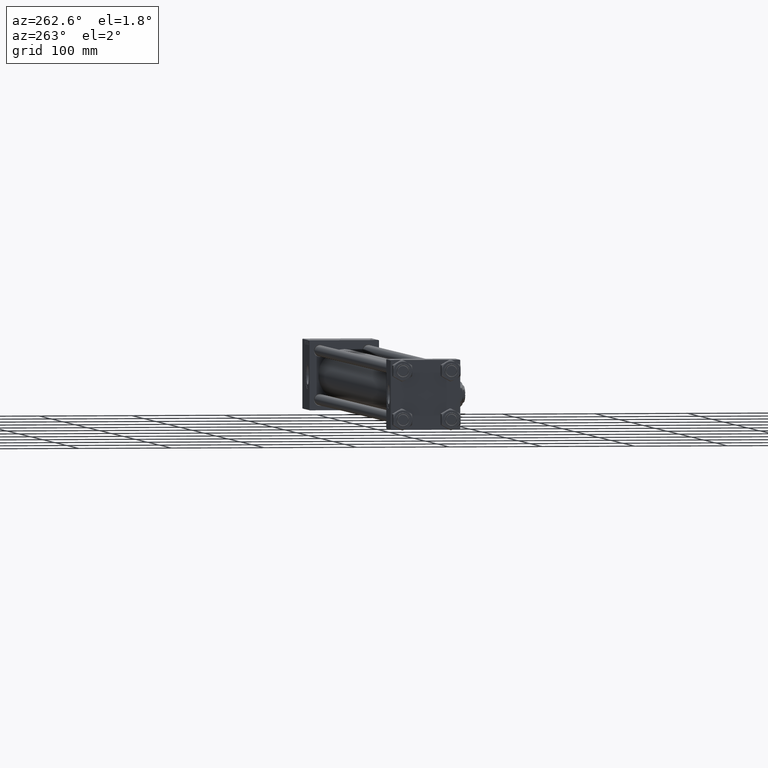
[diagram: clean part render]
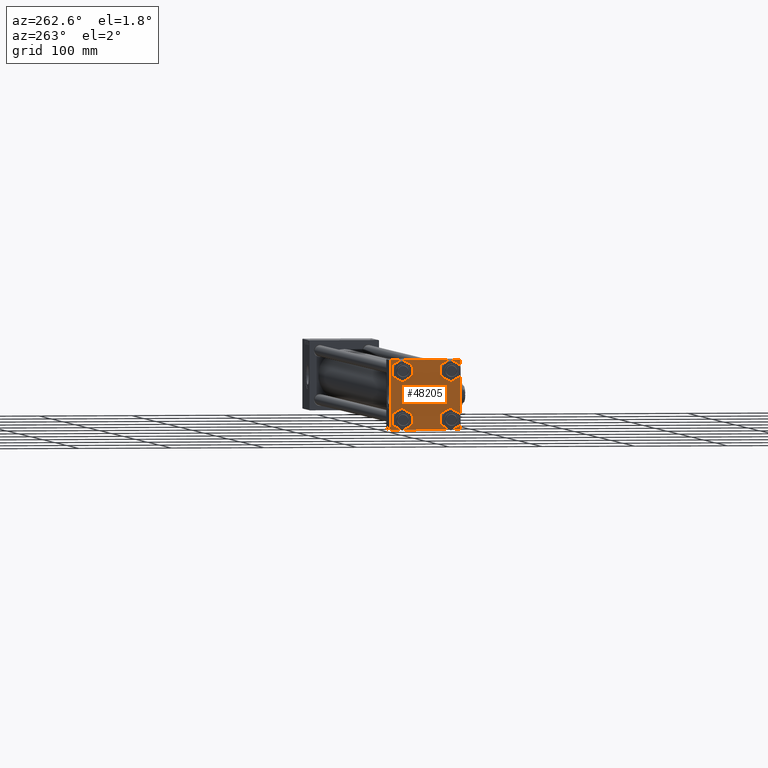
[diagram: same view with one face highlighted and labeled with its STEP entity id]
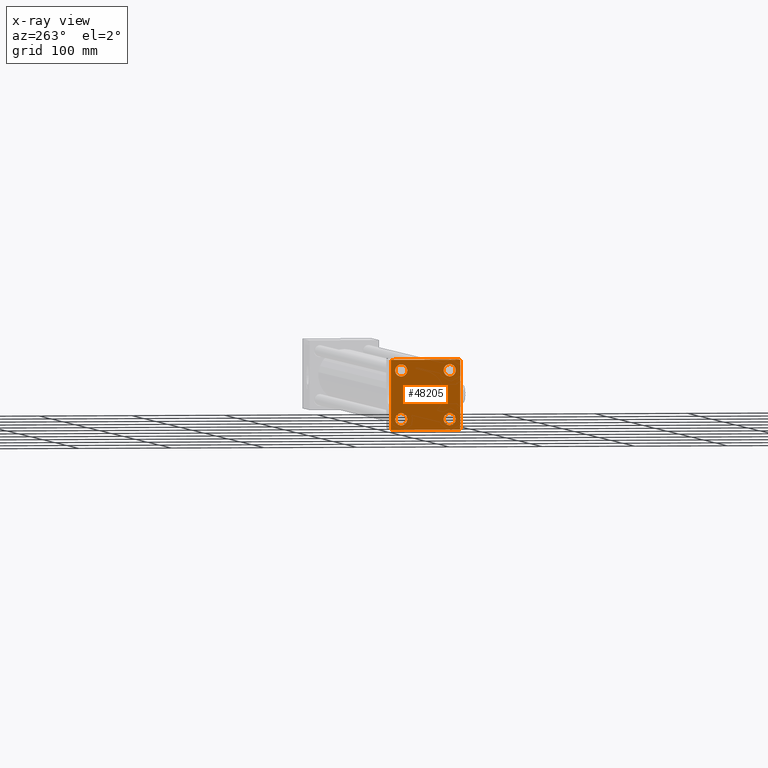
[diagram: x-ray of the same camera — body ghosted, the highlighted face saturated]
A machine part, auxiliary view. The second image highlights one B-rep face of the part: STEP entity #48205.
The next image is the same camera in x-ray: the body ghosted, the highlighted face saturated — about 0% of this face is hidden behind the body in this view.
In plain terms, the highlighted planar face has unit normal (-1, 0, 0).
Its self-contained STEP definition (entity closure, byte-faithful):
#297 = CARTESIAN_POINT ( 'NONE',  ( 0.000000000000000000, 37.49999999999999289, -37.50000000000000000 ) ) ;
#303 = EDGE_LOOP ( 'NONE', ( #8686, #26790 ) ) ;
#480 = DIRECTION ( 'NONE',  ( 0.000000000000000000, 0.000000000000000000, -1.000000000000000000 ) ) ;
#637 = DIRECTION ( 'NONE',  ( 0.000000000000000000, 0.000000000000000000, 1.000000000000000000 ) ) ;
#860 = EDGE_CURVE ( 'NONE', #16897, #50272, #22333, .T. ) ;
#1016 = CARTESIAN_POINT ( 'NONE',  ( 0.000000000000000000, -37.00000000000000711, 37.49999999999999289 ) ) ;
#1248 = ORIENTED_EDGE ( 'NONE', *, *, #50655, .T. ) ;
#2150 = ORIENTED_EDGE ( 'NONE', *, *, #19420, .T. ) ;
#2181 = ORIENTED_EDGE ( 'NONE', *, *, #44718, .F. ) ;
#2678 = VERTEX_POINT ( 'NONE', #42814 ) ;
#3039 = VERTEX_POINT ( 'NONE', #33382 ) ;
#3116 = CARTESIAN_POINT ( 'NONE',  ( 0.000000000000000000, 37.49999999999999289, 37.00000000000000000 ) ) ;
#3119 = VERTEX_POINT ( 'NONE', #3116 ) ;
#3278 = VERTEX_POINT ( 'NONE', #42307 ) ;
#3314 = VECTOR ( 'NONE', #15077, 1000.000000000000114 ) ;
#3879 = FACE_BOUND ( 'NONE', #15315, .T. ) ;
#4112 = DIRECTION ( 'NONE',  ( 1.000000000000000000, -0.000000000000000000, 0.000000000000000000 ) ) ;
#4158 = ORIENTED_EDGE ( 'NONE', *, *, #40213, .T. ) ;
#5098 = VECTOR ( 'NONE', #480, 1000.000000000000000 ) ;
#5248 = CIRCLE ( 'NONE', #12003, 6.500000000000023093 ) ;
#5592 = AXIS2_PLACEMENT_3D ( 'NONE', #39697, #27489, #39427 ) ;
#5762 = VERTEX_POINT ( 'NONE', #24623 ) ;
#6120 = DIRECTION ( 'NONE',  ( 0.000000000000000000, -1.000000000000000000, -9.251858538542971581E-17 ) ) ;
#7220 = DIRECTION ( 'NONE',  ( 1.000000000000000000, -0.000000000000000000, 0.000000000000000000 ) ) ;
#7550 = LINE ( 'NONE', #52355, #9122 ) ;
#8244 = DIRECTION ( 'NONE',  ( 0.000000000000000000, -1.000000000000000000, -9.251858538542972814E-17 ) ) ;
#8288 = LINE ( 'NONE', #40893, #44618 ) ;
#8490 = EDGE_CURVE ( 'NONE', #3039, #2678, #28446, .T. ) ;
#8634 = ORIENTED_EDGE ( 'NONE', *, *, #9716, .T. ) ;
#8686 = ORIENTED_EDGE ( 'NONE', *, *, #860, .T. ) ;
#8991 = VECTOR ( 'NONE', #8244, 1000.000000000000000 ) ;
#9028 = CARTESIAN_POINT ( 'NONE',  ( 0.000000000000000000, 37.49999999999999289, -36.99999999999998579 ) ) ;
#9122 = VECTOR ( 'NONE', #15495, 1000.000000000000000 ) ;
#9716 = EDGE_CURVE ( 'NONE', #5762, #15956, #28391, .T. ) ;
#9888 = AXIS2_PLACEMENT_3D ( 'NONE', #41090, #24379, #48778 ) ;
#10296 = VERTEX_POINT ( 'NONE', #31681 ) ;
#10829 = CARTESIAN_POINT ( 'NONE',  ( 0.000000000000000000, 37.24999999999999289, 37.24999999999999289 ) ) ;
#10999 = EDGE_CURVE ( 'NONE', #3278, #51819, #25993, .T. ) ;
#11502 = EDGE_CURVE ( 'NONE', #14997, #31414, #46430, .T. ) ;
#12003 = AXIS2_PLACEMENT_3D ( 'NONE', #35344, #7220, #26855 ) ;
#12359 = FACE_BOUND ( 'NONE', #33289, .T. ) ;
#12804 = ORIENTED_EDGE ( 'NONE', *, *, #11502, .F. ) ;
#13259 = VECTOR ( 'NONE', #18908, 1000.000000000000114 ) ;
#13412 = EDGE_CURVE ( 'NONE', #49006, #36075, #15044, .T. ) ;
#14173 = CARTESIAN_POINT ( 'NONE',  ( 0.000000000000000000, 37.24999999999998579, -37.24999999999998579 ) ) ;
#14650 = DIRECTION ( 'NONE',  ( 1.000000000000000000, -0.000000000000000000, 0.000000000000000000 ) ) ;
#14915 = CARTESIAN_POINT ( 'NONE',  ( 0.000000000000000000, -26.14999999999999147, -26.15000000000000924 ) ) ;
#14997 = VERTEX_POINT ( 'NONE', #19261 ) ;
#15044 = CIRCLE ( 'NONE', #41335, 6.500000000000023093 ) ;
#15077 = DIRECTION ( 'NONE',  ( 0.000000000000000000, 0.7071067811865474617, -0.7071067811865474617 ) ) ;
#15306 = CIRCLE ( 'NONE', #48354, 6.500000000000015987 ) ;
#15315 = EDGE_LOOP ( 'NONE', ( #15942, #45354 ) ) ;
#15495 = DIRECTION ( 'NONE',  ( 0.000000000000000000, -0.7071067811865524577, 0.7071067811865426878 ) ) ;
#15549 = PLANE ( 'NONE',  #5592 ) ;
#15812 = VERTEX_POINT ( 'NONE', #18938 ) ;
#15942 = ORIENTED_EDGE ( 'NONE', *, *, #13412, .T. ) ;
#15956 = VERTEX_POINT ( 'NONE', #28499 ) ;
#16438 = ORIENTED_EDGE ( 'NONE', *, *, #17032, .T. ) ;
#16897 = VERTEX_POINT ( 'NONE', #43434 ) ;
#17032 = EDGE_CURVE ( 'NONE', #3119, #43323, #20599, .T. ) ;
#18908 = DIRECTION ( 'NONE',  ( -0.000000000000000000, -0.7071067811865474617, -0.7071067811865474617 ) ) ;
#18938 = CARTESIAN_POINT ( 'NONE',  ( 0.000000000000000000, -37.50000000000000000, -37.00000000000003553 ) ) ;
#19261 = CARTESIAN_POINT ( 'NONE',  ( 0.000000000000000000, 36.99999999999999289, 37.50000000000000000 ) ) ;
#19420 = EDGE_CURVE ( 'NONE', #51819, #3278, #15306, .T. ) ;
#20599 = LINE ( 'NONE', #42519, #5098 ) ;
#21327 = DIRECTION ( 'NONE',  ( 0.000000000000000000, 0.000000000000000000, 1.000000000000000000 ) ) ;
#21696 = CARTESIAN_POINT ( 'NONE',  ( 0.000000000000000000, -26.14999999999999147, 32.65000000000003411 ) ) ;
#22088 = DIRECTION ( 'NONE',  ( 0.000000000000000000, 0.000000000000000000, 1.000000000000000000 ) ) ;
#22117 = CARTESIAN_POINT ( 'NONE',  ( 0.000000000000000000, -37.50000000000000711, 37.49999999999999289 ) ) ;
#22333 = CIRCLE ( 'NONE', #43539, 6.500000000000015987 ) ;
#22495 = CARTESIAN_POINT ( 'NONE',  ( 0.000000000000000000, 26.14999999999999858, -19.64999999999998792 ) ) ;
#22588 = AXIS2_PLACEMENT_3D ( 'NONE', #46263, #46520, #43075 ) ;
#24254 = CARTESIAN_POINT ( 'NONE',  ( 0.000000000000000000, 26.14999999999999858, 26.15000000000000213 ) ) ;
#24379 = DIRECTION ( 'NONE',  ( 1.000000000000000000, -0.000000000000000000, 0.000000000000000000 ) ) ;
#24623 = CARTESIAN_POINT ( 'NONE',  ( 0.000000000000000000, 36.99999999999997868, -37.50000000000000000 ) ) ;
#25775 = LINE ( 'NONE', #10829, #3314 ) ;
#25993 = CIRCLE ( 'NONE', #9888, 6.500000000000015987 ) ;
#26417 = EDGE_CURVE ( 'NONE', #50272, #16897, #42511, .T. ) ;
#26581 = EDGE_CURVE ( 'NONE', #36075, #49006, #5248, .T. ) ;
#26790 = ORIENTED_EDGE ( 'NONE', *, *, #26417, .T. ) ;
#26855 = DIRECTION ( 'NONE',  ( 0.000000000000000000, 0.000000000000000000, 1.000000000000000000 ) ) ;
#27489 = DIRECTION ( 'NONE',  ( -1.000000000000000000, 0.000000000000000000, -0.000000000000000000 ) ) ;
#27670 = CIRCLE ( 'NONE', #22588, 6.500000000000023093 ) ;
#28391 = LINE ( 'NONE', #297, #8991 ) ;
#28446 = CIRCLE ( 'NONE', #50456, 6.500000000000023093 ) ;
#28499 = CARTESIAN_POINT ( 'NONE',  ( 0.000000000000000000, -37.00000000000002132, -37.50000000000000711 ) ) ;
#28728 = DIRECTION ( 'NONE',  ( 1.000000000000000000, -0.000000000000000000, 0.000000000000000000 ) ) ;
#29773 = CARTESIAN_POINT ( 'NONE',  ( 0.000000000000000000, -26.14999999999999147, 26.15000000000000924 ) ) ;
#29972 = ORIENTED_EDGE ( 'NONE', *, *, #10999, .T. ) ;
#30970 = DIRECTION ( 'NONE',  ( 1.000000000000000000, -0.000000000000000000, 0.000000000000000000 ) ) ;
#31414 = VERTEX_POINT ( 'NONE', #1016 ) ;
#31681 = CARTESIAN_POINT ( 'NONE',  ( 0.000000000000000000, -37.50000000000000711, 36.99999999999999289 ) ) ;
#31960 = ORIENTED_EDGE ( 'NONE', *, *, #8490, .T. ) ;
#32001 = FACE_BOUND ( 'NONE', #303, .T. ) ;
#32410 = DIRECTION ( 'NONE',  ( -0.000000000000000000, 0.7071067811865474617, 0.7071067811865474617 ) ) ;
#33218 = AXIS2_PLACEMENT_3D ( 'NONE', #37496, #48905, #45179 ) ;
#33289 = EDGE_LOOP ( 'NONE', ( #2150, #29972 ) ) ;
#33382 = CARTESIAN_POINT ( 'NONE',  ( 0.000000000000000000, 26.14999999999999858, 19.64999999999998437 ) ) ;
#33550 = VECTOR ( 'NONE', #45996, 1000.000000000000000 ) ;
#34429 = EDGE_LOOP ( 'NONE', ( #16438, #4158, #8634, #49108, #2181, #1248, #12804, #49491 ) ) ;
#34602 = LINE ( 'NONE', #14173, #13259 ) ;
#35344 = CARTESIAN_POINT ( 'NONE',  ( 0.000000000000000000, -26.14999999999999147, 26.15000000000000924 ) ) ;
#36075 = VERTEX_POINT ( 'NONE', #46153 ) ;
#37496 = CARTESIAN_POINT ( 'NONE',  ( 0.000000000000000000, -26.14999999999999147, -26.15000000000000924 ) ) ;
#39427 = DIRECTION ( 'NONE',  ( -0.000000000000000000, 0.000000000000000000, 1.000000000000000000 ) ) ;
#39455 = DIRECTION ( 'NONE',  ( 0.000000000000000000, 0.000000000000000000, 1.000000000000000000 ) ) ;
#39697 = CARTESIAN_POINT ( 'NONE',  ( 0.000000000000000000, 0.000000000000000000, 0.000000000000000000 ) ) ;
#39949 = FACE_BOUND ( 'NONE', #46983, .T. ) ;
#40213 = EDGE_CURVE ( 'NONE', #43323, #5762, #34602, .T. ) ;
#40309 = EDGE_CURVE ( 'NONE', #2678, #3039, #27670, .T. ) ;
#40483 = FACE_OUTER_BOUND ( 'NONE', #34429, .T. ) ;
#40893 = CARTESIAN_POINT ( 'NONE',  ( -0.000000000000000000, -37.25000000000000000, 37.25000000000000000 ) ) ;
#41090 = CARTESIAN_POINT ( 'NONE',  ( 0.000000000000000000, 26.14999999999999858, -26.15000000000000213 ) ) ;
#41335 = AXIS2_PLACEMENT_3D ( 'NONE', #29773, #28728, #637 ) ;
#41571 = ORIENTED_EDGE ( 'NONE', *, *, #40309, .T. ) ;
#42076 = VECTOR ( 'NONE', #6120, 1000.000000000000000 ) ;
#42176 = EDGE_CURVE ( 'NONE', #14997, #3119, #25775, .T. ) ;
#42283 = LINE ( 'NONE', #22117, #33550 ) ;
#42307 = CARTESIAN_POINT ( 'NONE',  ( 0.000000000000000000, 26.14999999999999858, -32.65000000000001990 ) ) ;
#42511 = CIRCLE ( 'NONE', #33218, 6.500000000000015987 ) ;
#42519 = CARTESIAN_POINT ( 'NONE',  ( 0.000000000000000000, 37.49999999999999289, 37.50000000000000000 ) ) ;
#42814 = CARTESIAN_POINT ( 'NONE',  ( 0.000000000000000000, 26.14999999999999858, 32.65000000000002700 ) ) ;
#43075 = DIRECTION ( 'NONE',  ( 0.000000000000000000, 0.000000000000000000, 1.000000000000000000 ) ) ;
#43323 = VERTEX_POINT ( 'NONE', #9028 ) ;
#43434 = CARTESIAN_POINT ( 'NONE',  ( 0.000000000000000000, -26.14999999999999147, -19.64999999999999503 ) ) ;
#43539 = AXIS2_PLACEMENT_3D ( 'NONE', #14915, #14650, #22088 ) ;
#44618 = VECTOR ( 'NONE', #32410, 1000.000000000000114 ) ;
#44718 = EDGE_CURVE ( 'NONE', #10296, #15812, #42283, .T. ) ;
#45179 = DIRECTION ( 'NONE',  ( 0.000000000000000000, 0.000000000000000000, 1.000000000000000000 ) ) ;
#45354 = ORIENTED_EDGE ( 'NONE', *, *, #26581, .T. ) ;
#45670 = CARTESIAN_POINT ( 'NONE',  ( 0.000000000000000000, 37.49999999999999289, 37.50000000000000000 ) ) ;
#45996 = DIRECTION ( 'NONE',  ( 0.000000000000000000, 9.251858538542971581E-17, -1.000000000000000000 ) ) ;
#46153 = CARTESIAN_POINT ( 'NONE',  ( 0.000000000000000000, -26.14999999999999147, 19.64999999999999147 ) ) ;
#46263 = CARTESIAN_POINT ( 'NONE',  ( 0.000000000000000000, 26.14999999999999858, 26.15000000000000213 ) ) ;
#46430 = LINE ( 'NONE', #45670, #42076 ) ;
#46520 = DIRECTION ( 'NONE',  ( 1.000000000000000000, -0.000000000000000000, 0.000000000000000000 ) ) ;
#46983 = EDGE_LOOP ( 'NONE', ( #41571, #31960 ) ) ;
#47065 = CARTESIAN_POINT ( 'NONE',  ( 0.000000000000000000, -26.14999999999999147, -32.65000000000002700 ) ) ;
#47141 = CARTESIAN_POINT ( 'NONE',  ( 0.000000000000000000, 26.14999999999999858, -26.15000000000000213 ) ) ;
#48205 = ADVANCED_FACE ( 'NONE', ( #3879, #32001, #12359, #39949, #40483 ), #15549, .T. ) ;
#48354 = AXIS2_PLACEMENT_3D ( 'NONE', #47141, #30970, #39455 ) ;
#48778 = DIRECTION ( 'NONE',  ( 0.000000000000000000, 0.000000000000000000, 1.000000000000000000 ) ) ;
#48905 = DIRECTION ( 'NONE',  ( 1.000000000000000000, -0.000000000000000000, 0.000000000000000000 ) ) ;
#49006 = VERTEX_POINT ( 'NONE', #21696 ) ;
#49108 = ORIENTED_EDGE ( 'NONE', *, *, #52207, .T. ) ;
#49491 = ORIENTED_EDGE ( 'NONE', *, *, #42176, .T. ) ;
#50272 = VERTEX_POINT ( 'NONE', #47065 ) ;
#50456 = AXIS2_PLACEMENT_3D ( 'NONE', #24254, #4112, #21327 ) ;
#50655 = EDGE_CURVE ( 'NONE', #10296, #31414, #8288, .T. ) ;
#51819 = VERTEX_POINT ( 'NONE', #22495 ) ;
#52207 = EDGE_CURVE ( 'NONE', #15956, #15812, #7550, .T. ) ;
#52355 = CARTESIAN_POINT ( 'NONE',  ( 0.000000000000000000, -37.24999999999975842, -37.25000000000027001 ) ) ;